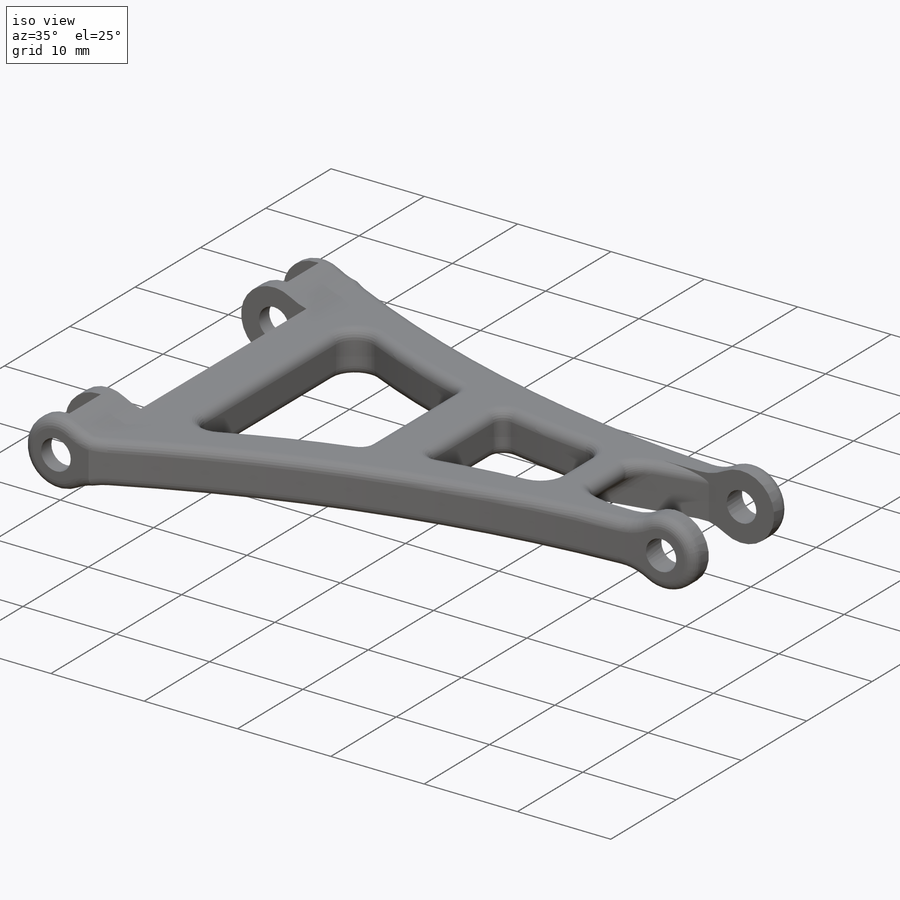
[diagram: iso view]
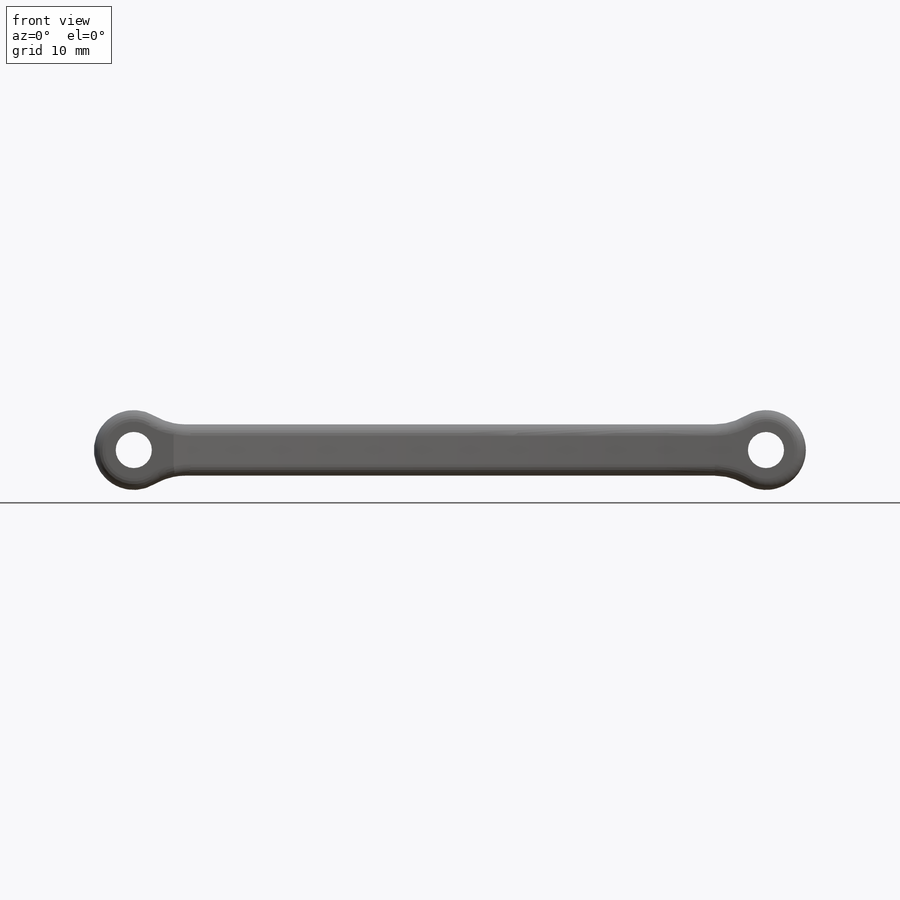
[diagram: front view]
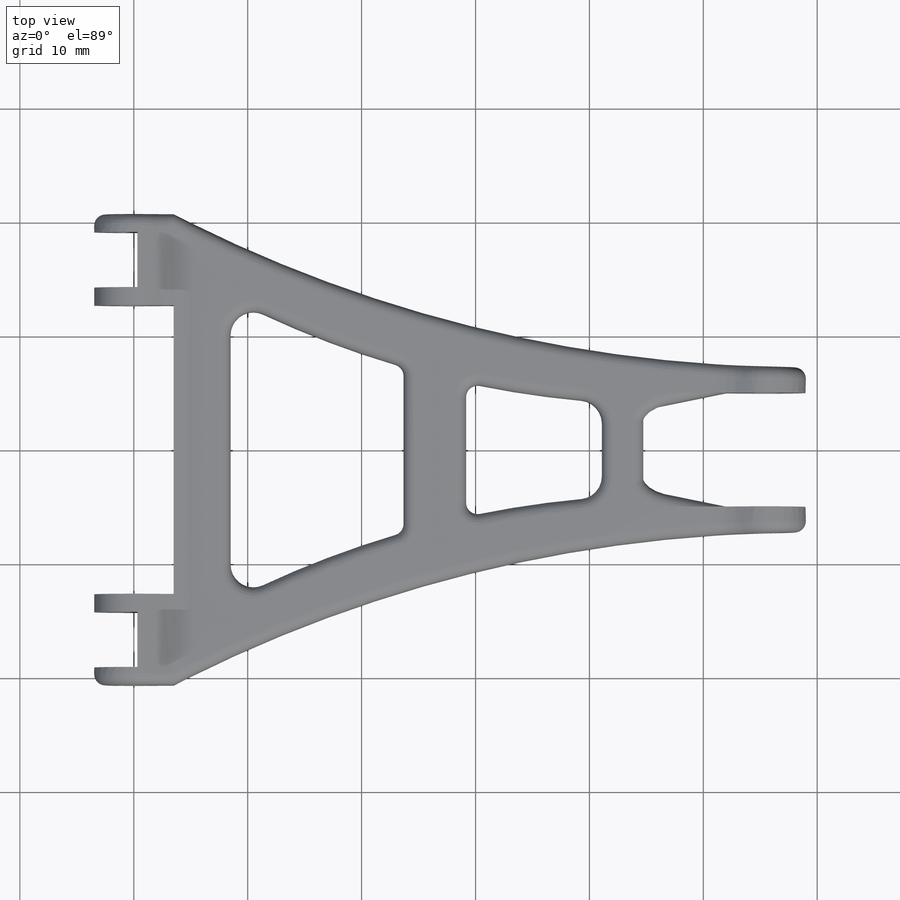
[diagram: top view]
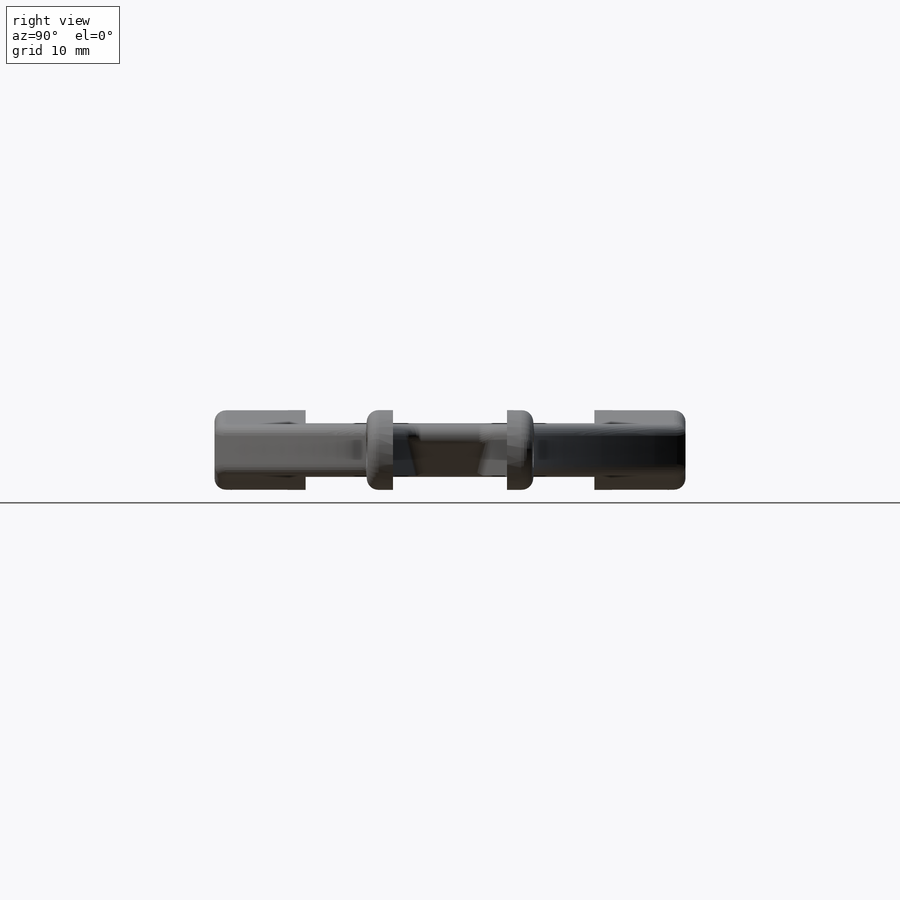
[diagram: right view]
SOLIDWORKS PART (.sldprt)
format: sldprt  version: not decoded by parser v0  size: 582,144 bytes
history: native  units: mm
features: fillet x3, sketch x2, material x1, extrude x1, cut_extrude x1, chamfer x1 (+11 scaffold rows collapsed)
feature tree (20):
  scaffold x11  (default folders/planes/origin — collapsed)
  material  "6061 Alloy"
  sketch  "Sketch1"  dims[c1.D1=6.0mm c1.D2=6.0mm c1.D3=8.0mm c1.D4=5.0mm c1.D5=5.0mm c1.D6=8.0mm c1.D7=7.0mm c1.D8=28.5mm c1.D9=38.2mm c2.D6=10.0mm c2.D10=59.0mm c2.D11=7.0mm c2.D12=7.25mm c2.D13=7.25mm c2.D14=5.0mm c2.D15=5.0mm]
  extrude  "Boss-Extrude1"  Depth=7mm
  sketch  "Sketch2"  dims[D1=3.175mm D3=3.175mm D2=4.5mm]
  cut_extrude  "Cut-Extrude1"  [1 undecoded]
  fillet  "Fillet1"  Radius=2mm
  chamfer  "Chamfer1"  Distance=6mm Angle=39deg
  fillet  "Fillet4"  Radius=1mm
  fillet  "Fillet3"  Radius=1mm
decode coverage: 7 of 8 modeling features carry decoded parameters
note: 1 parameter value undecoded
note: suppression state not decoded; provenance and decode notes live in map.json
